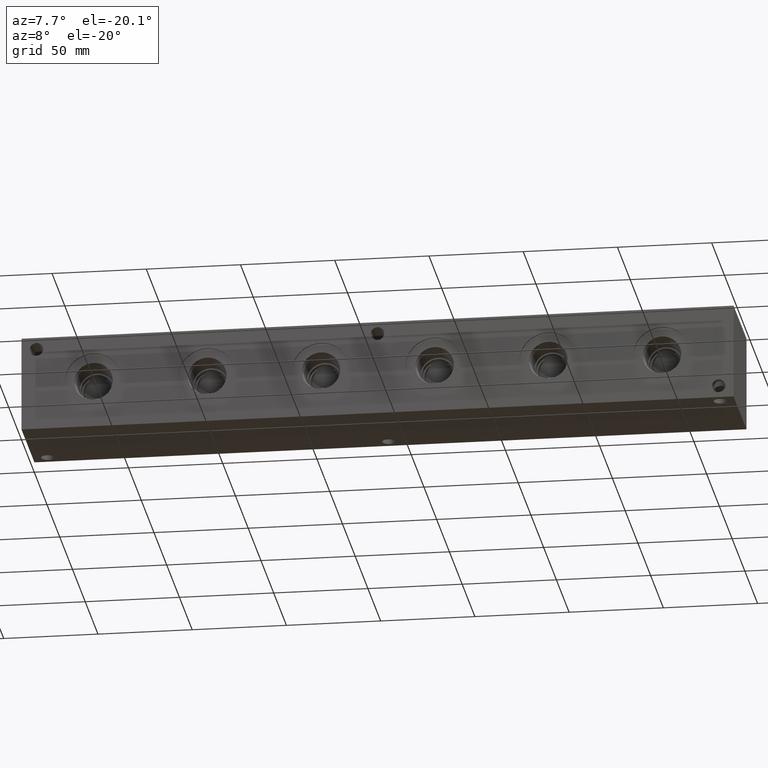
[diagram: clean part render]
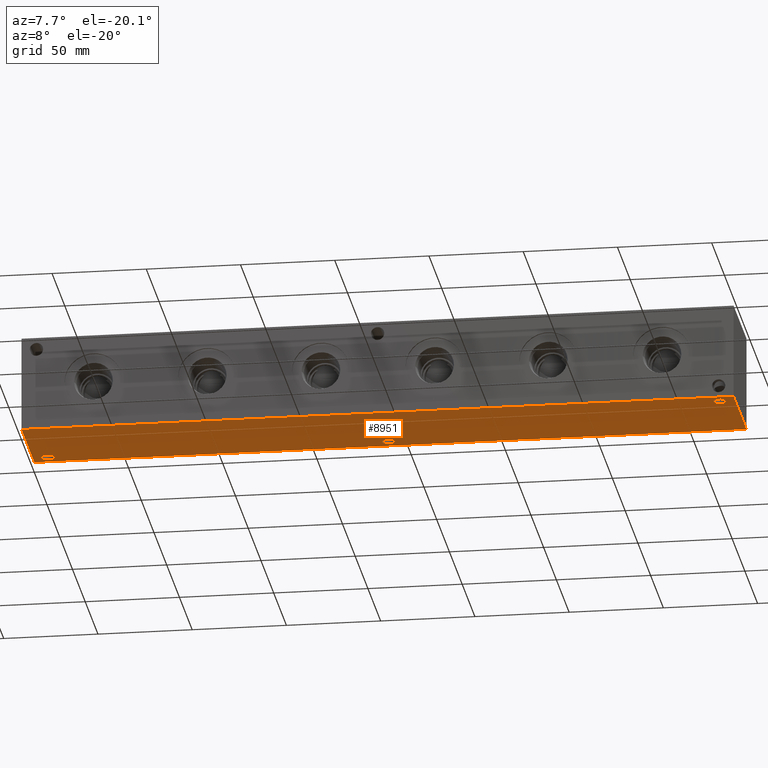
[diagram: same view with one face highlighted and labeled with its STEP entity id]
A machine part, auxiliary view. The second image highlights one B-rep face of the part: STEP entity #8951.
In plain terms, the highlighted planar face has unit normal (0, 0, 1).
Its self-contained STEP definition (entity closure, byte-faithful):
#395=CIRCLE('',#9557,3.5687);
#396=CIRCLE('',#9559,3.5687);
#397=CIRCLE('',#9561,3.5687);
#473=FACE_BOUND('',#1713,.T.);
#474=FACE_BOUND('',#1714,.T.);
#475=FACE_BOUND('',#1715,.T.);
#693=PLANE('',#9567);
#1165=FACE_OUTER_BOUND('',#1712,.T.);
#1712=EDGE_LOOP('',(#8027,#8028,#8029,#8030));
#1713=EDGE_LOOP('',(#8031));
#1714=EDGE_LOOP('',(#8032));
#1715=EDGE_LOOP('',(#8033));
#2412=LINE('',#15980,#3116);
#2415=LINE('',#15985,#3119);
#2417=LINE('',#15989,#3121);
#2419=LINE('',#15992,#3123);
#3116=VECTOR('',#11460,10.);
#3119=VECTOR('',#11465,10.);
#3121=VECTOR('',#11469,10.);
#3123=VECTOR('',#11473,10.);
#4247=VERTEX_POINT('',#15966);
#4248=VERTEX_POINT('',#15970);
#4249=VERTEX_POINT('',#15974);
#4250=VERTEX_POINT('',#15978);
#4251=VERTEX_POINT('',#15979);
#4252=VERTEX_POINT('',#15984);
#4253=VERTEX_POINT('',#15988);
#5501=EDGE_CURVE('',#4247,#4247,#395,.T.);
#5503=EDGE_CURVE('',#4248,#4248,#396,.T.);
#5505=EDGE_CURVE('',#4249,#4249,#397,.T.);
#5506=EDGE_CURVE('',#4250,#4251,#2412,.T.);
#5509=EDGE_CURVE('',#4252,#4250,#2415,.T.);
#5511=EDGE_CURVE('',#4253,#4252,#2417,.T.);
#5513=EDGE_CURVE('',#4251,#4253,#2419,.T.);
#8027=ORIENTED_EDGE('',*,*,#5513,.F.);
#8028=ORIENTED_EDGE('',*,*,#5506,.F.);
#8029=ORIENTED_EDGE('',*,*,#5509,.F.);
#8030=ORIENTED_EDGE('',*,*,#5511,.F.);
#8031=ORIENTED_EDGE('',*,*,#5501,.T.);
#8032=ORIENTED_EDGE('',*,*,#5503,.T.);
#8033=ORIENTED_EDGE('',*,*,#5505,.T.);
#8951=ADVANCED_FACE('',(#1165,#473,#474,#475),#693,.F.);
#9557=AXIS2_PLACEMENT_3D('',#15968,#11446,#11447);
#9559=AXIS2_PLACEMENT_3D('',#15972,#11451,#11452);
#9561=AXIS2_PLACEMENT_3D('',#15976,#11456,#11457);
#9567=AXIS2_PLACEMENT_3D('',#15994,#11476,#11477);
#11446=DIRECTION('center_axis',(0.,0.,1.));
#11447=DIRECTION('ref_axis',(1.,0.,0.));
#11451=DIRECTION('center_axis',(0.,0.,1.));
#11452=DIRECTION('ref_axis',(1.,0.,0.));
#11456=DIRECTION('center_axis',(0.,0.,1.));
#11457=DIRECTION('ref_axis',(1.,0.,0.));
#11460=DIRECTION('',(0.,-1.,0.));
#11465=DIRECTION('',(-1.,0.,0.));
#11469=DIRECTION('',(0.,1.,0.));
#11473=DIRECTION('',(1.,0.,0.));
#11476=DIRECTION('center_axis',(0.,0.,1.));
#11477=DIRECTION('ref_axis',(1.,0.,0.));
#15966=CARTESIAN_POINT('',(185.3565,44.45,0.));
#15968=CARTESIAN_POINT('Origin',(188.9252,44.45,0.));
#15970=CARTESIAN_POINT('',(4.3561,44.45,0.));
#15972=CARTESIAN_POINT('Origin',(7.9248,44.45,0.));
#15974=CARTESIAN_POINT('',(366.3061,6.35,0.));
#15976=CARTESIAN_POINT('Origin',(369.8748,6.35,0.));
#15978=CARTESIAN_POINT('',(0.,50.8,0.));
#15979=CARTESIAN_POINT('',(0.,0.,0.));
#15980=CARTESIAN_POINT('',(0.,50.8,0.));
#15984=CARTESIAN_POINT('',(377.825,50.8,0.));
#15985=CARTESIAN_POINT('',(377.825,50.8,0.));
#15988=CARTESIAN_POINT('',(377.825,0.,0.));
#15989=CARTESIAN_POINT('',(377.825,0.,0.));
#15992=CARTESIAN_POINT('',(0.,0.,0.));
#15994=CARTESIAN_POINT('Origin',(188.9125,25.4,0.));